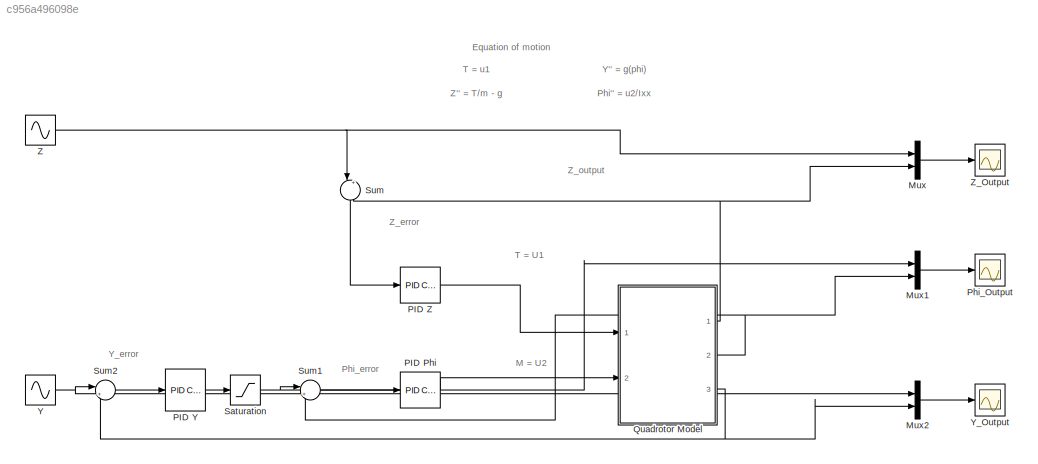
MODEL slx_c956a496098e
KIND model
CONFIG AbsTol = auto
CONFIG EnableMultiTasking = off
CONFIG FixedStep = auto
CONFIG MaxStep = auto
CONFIG MinStep = auto
CONFIG RelTol = 1e-3
CONFIG SampleTimeConstraint = Unconstrained
CONFIG Solver = VariableStepAuto
CONFIG SolverName = VariableStepAuto
CONFIG StartTime = 0.0
CONFIG StopTime = 10.0
BLOCK [Mux] Mux
  DisplayOption = bar
  Inputs = 2
  Ports = [2, 1]
BLOCK [Mux] Mux1
  DisplayOption = bar
  Inputs = 2
  Ports = [2, 1]
BLOCK [Mux] Mux2
  DisplayOption = bar
  Inputs = 2
  Ports = [2, 1]
BLOCK [Reference] PID Phi  REF=simulink/Continuous/PID Controller
  Ports = [1, 1]
  SourceBlock = simulink/Continuous/PID Controller
  SourceProductBaseCode = SL
  SourceProductName = Simulink
  SourceType = PID 1dof
BLOCK [Reference] PID Y  REF=simulink/Continuous/PID Controller
  Ports = [1, 1]
  SourceBlock = simulink/Continuous/PID Controller
  SourceProductBaseCode = SL
  SourceProductName = Simulink
  SourceType = PID 1dof
BLOCK [Reference] PID Z  REF=simulink/Continuous/PID Controller
  Ports = [1, 1]
  SourceBlock = simulink/Continuous/PID Controller
  SourceProductBaseCode = SL
  SourceProductName = Simulink
  SourceType = PID 1dof
BLOCK [Scope] Phi_Output
  Floating = off
  NumInputPorts = 1
  Ports = [1]
  ScopeSpecificationString = Simulink.scopes.TimeScopeBlockCfg('CurrentConfiguration', extmgr.ConfigurationSet(extmgr.Configuration('Core','General UI',true),extmgr.Configuration('Core','Source UI',true),extmgr.Configuration('Sources','WiredSimulink',true,'DataLoggingVariableName','ScopeData1'),extmgr.Configuration('Visuals','Time Domain',true,'SerializedDisplays',{struct('MinYLimReal','-0.74568','MaxYLimReal','1.51324','YLab...<+1416ch>
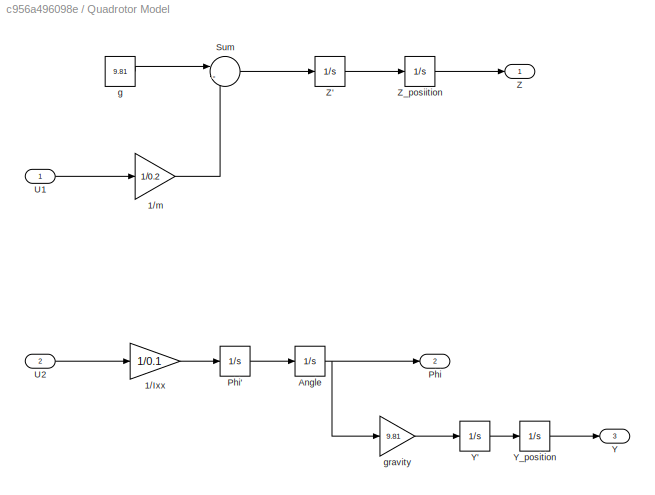
BLOCK [SubSystem] Quadrotor Model
  Ports = [2, 3]
  RequestExecContextInheritance = off
BLOCK [Gain] Quadrotor Model/1//Ixx
  Gain = 1/0.1
  OutDataTypeStr = Inherit: Inherit via internal rule
  ParamDataTypeStr = Inherit: Inherit via internal rule
  SaturateOnIntegerOverflow = off
BLOCK [Gain] Quadrotor Model/1//m
  Gain = 1/0.2
  OutDataTypeStr = Inherit: Inherit via internal rule
  ParamDataTypeStr = Inherit: Inherit via internal rule
  SaturateOnIntegerOverflow = off
BLOCK [Integrator] Quadrotor Model/Angle
  Ports = [1, 1]
BLOCK [Outport] Quadrotor Model/Phi
  IconDisplay = Port number
  Port = 2
BLOCK [Integrator] Quadrotor Model/Phi'
  Ports = [1, 1]
BLOCK [Sum] Quadrotor Model/Sum
  IconShape = round
  InputSameDT = off
  Inputs = |-+
  OutDataTypeStr = Inherit: Inherit via internal rule
  Ports = [2, 1]
  SaturateOnIntegerOverflow = off
BLOCK [Inport] Quadrotor Model/U1
  IconDisplay = Port number
BLOCK [Inport] Quadrotor Model/U2
  IconDisplay = Port number
  Port = 2
BLOCK [Outport] Quadrotor Model/Y
  IconDisplay = Port number
  Port = 3
BLOCK [Integrator] Quadrotor Model/Y'
  Ports = [1, 1]
BLOCK [Integrator] Quadrotor Model/Y_position
  Ports = [1, 1]
BLOCK [Outport] Quadrotor Model/Z
  IconDisplay = Port number
BLOCK [Integrator] Quadrotor Model/Z'
  Ports = [1, 1]
BLOCK [Integrator] Quadrotor Model/Z_posiition 
  Ports = [1, 1]
BLOCK [Constant] Quadrotor Model/g 
  Value = 9.81
BLOCK [Gain] Quadrotor Model/gravity
  Gain = 9.81
  OutDataTypeStr = Inherit: Inherit via internal rule
  ParamDataTypeStr = Inherit: Inherit via internal rule
  SaturateOnIntegerOverflow = off
BLOCK [Saturate] Saturation
  InputPortMap = u0
  LowerLimit = -0.8
  Ports = [1, 1]
  UpperLimit = 0.8
BLOCK [Sum] Sum
  IconShape = round
  InputSameDT = off
  Inputs = |+-
  OutDataTypeStr = Inherit: Inherit via internal rule
  Ports = [2, 1]
  SaturateOnIntegerOverflow = off
BLOCK [Sum] Sum1
  IconShape = round
  InputSameDT = off
  Inputs = |+-
  OutDataTypeStr = Inherit: Inherit via internal rule
  Ports = [2, 1]
  SaturateOnIntegerOverflow = off
BLOCK [Sum] Sum2
  IconShape = round
  InputSameDT = off
  Inputs = |+-
  OutDataTypeStr = Inherit: Inherit via internal rule
  Ports = [2, 1]
  SaturateOnIntegerOverflow = off
BLOCK [Sin] Y
  Amplitude = 5
  Ports = [0, 1]
  SampleTime = 0
BLOCK [Scope] Y_Output
  Floating = off
  NumInputPorts = 1
  Ports = [1]
  ScopeSpecificationString = Simulink.scopes.TimeScopeBlockCfg('CurrentConfiguration', extmgr.ConfigurationSet(extmgr.Configuration('Core','General UI',true),extmgr.Configuration('Core','Source UI',true),extmgr.Configuration('Sources','WiredSimulink',true,'DataLoggingVariableName','ScopeData2'),extmgr.Configuration('Visuals','Time Domain',true,'SerializedDisplays',{struct('MinYLimReal','-7.43426','MaxYLimReal','6.38158','YLab...<+1407ch>
BLOCK [Sin] Z
  Amplitude = 5
  Ports = [0, 1]
  SampleTime = 0
BLOCK [Scope] Z_Output
  Floating = off
  NumInputPorts = 1
  Ports = [1]
  ScopeSpecificationString = Simulink.scopes.TimeScopeBlockCfg('CurrentConfiguration', extmgr.ConfigurationSet(extmgr.Configuration('Core','General UI',true),extmgr.Configuration('Core','Source UI',true),extmgr.Configuration('Sources','WiredSimulink',true),extmgr.Configuration('Visuals','Time Domain',true,'SerializedDisplays',{struct('MinYLimReal','-6.8604','MaxYLimReal','6.31782','YLabelReal','','MinYLimMag','0.00000','MaxYL...<+1364ch>
ANNOTATION (root): Equation of motion
ANNOTATION (root): Phi'' = u2/I xx
ANNOTATION (root): T = u1
ANNOTATION (root): Y'' = g(phi)
ANNOTATION (root): Z'' = T/m - g
ANNOTATION (root): M = U2
ANNOTATION (root): Phi_error
ANNOTATION (root): T = U1
ANNOTATION (root): Y_error
ANNOTATION (root): Z_error
ANNOTATION (root): Z_output
LINE Mux1:1 -> Phi_Output:1
LINE Mux2:1 -> Y_Output:1
LINE Mux:1 -> Z_Output:1
LINE PID Phi:1 -> Quadrotor Model:2
LINE PID Y:1 -> Saturation:1
LINE PID Z:1 -> Quadrotor Model:1
LINE Quadrotor Model/1//Ixx:1 -> Quadrotor Model/Phi':1
LINE Quadrotor Model/1//m:1 -> Quadrotor Model/Sum:2
NET Quadrotor Model/Angle:1 -> Quadrotor Model/Phi:1, Quadrotor Model/gravity:1
LINE Quadrotor Model/Phi':1 -> Quadrotor Model/Angle:1
LINE Quadrotor Model/Sum:1 -> Quadrotor Model/Z':1
LINE Quadrotor Model/U1:1 -> Quadrotor Model/1//m:1
LINE Quadrotor Model/U2:1 -> Quadrotor Model/1//Ixx:1
LINE Quadrotor Model/Y':1 -> Quadrotor Model/Y_position:1
LINE Quadrotor Model/Y_position:1 -> Quadrotor Model/Y:1
LINE Quadrotor Model/Z':1 -> Quadrotor Model/Z_posiition :1
LINE Quadrotor Model/Z_posiition :1 -> Quadrotor Model/Z:1
LINE Quadrotor Model/g :1 -> Quadrotor Model/Sum:1
LINE Quadrotor Model/gravity:1 -> Quadrotor Model/Y':1
NET Quadrotor Model:1 -> Mux:2, Sum:2
NET Quadrotor Model:2 -> Mux1:2, Sum1:2
NET Quadrotor Model:3 -> Mux2:2, Sum2:2
NET Saturation:1 -> Mux1:1, Sum1:1
LINE Sum1:1 -> PID Phi:1
LINE Sum2:1 -> PID Y:1
LINE Sum:1 -> PID Z:1
NET Y:1 -> Mux2:1, Sum2:1
NET Z:1 -> Mux:1, Sum:1
note: NET lines group one-source signal fan-out (src -> all destinations, sorted); 1:1 wires keep LINE
